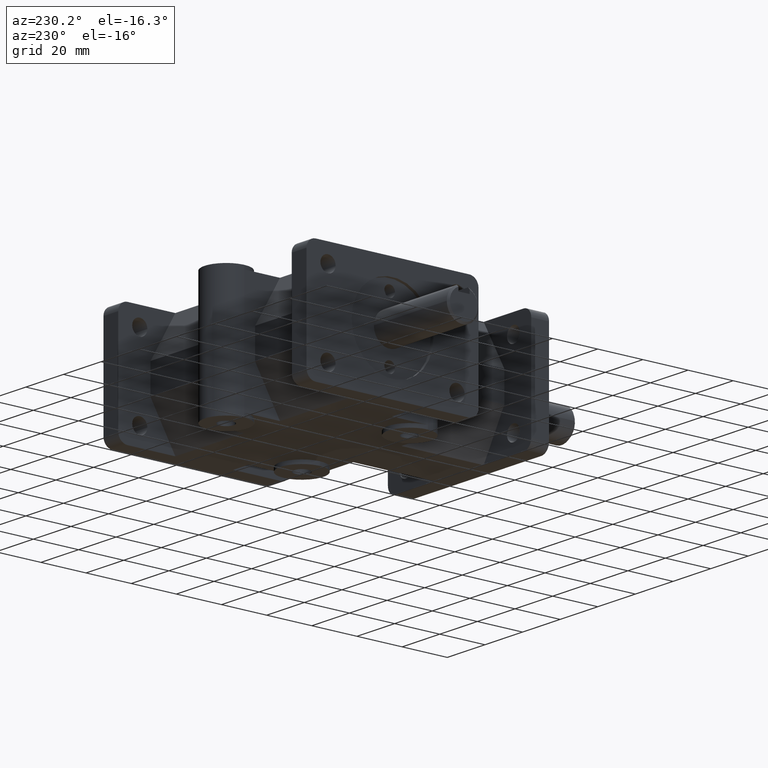
[diagram: clean part render]
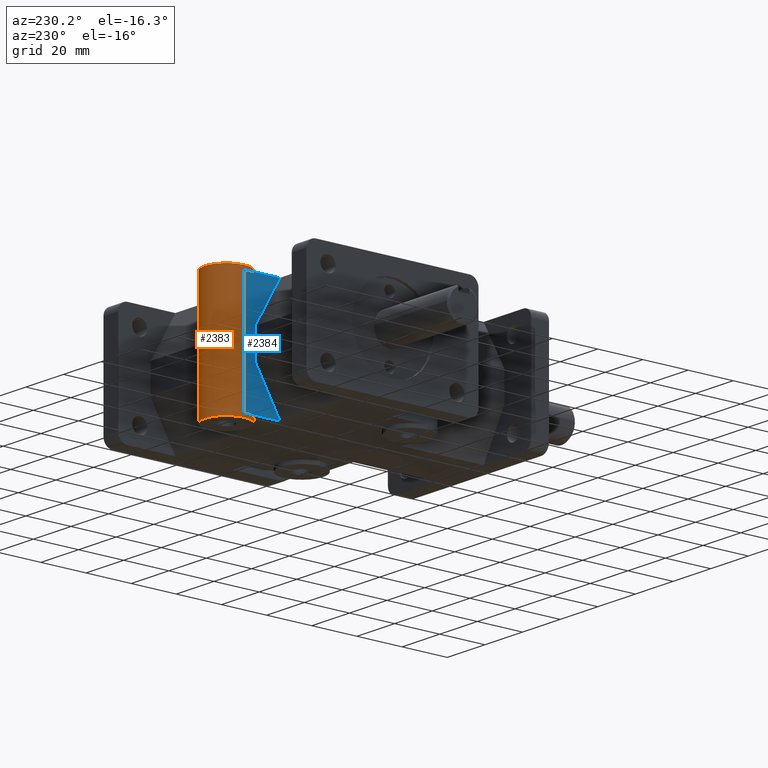
[diagram: same view with the hole feature highlighted: cylindrical wall and planar end face, labeled with their STEP entity ids]
A machine part, auxiliary view. The highlighted faces form one hole feature of diameter 19.05 mm: the cylindrical wall (entity #2383, orange) and its adjacent planar end face (entity #2384, blue) — they share a circular edge in the B-rep.
Wall:
#264=FACE_OUTER_BOUND('',#428,.T.);
#428=EDGE_LOOP('',(#2126,#2127,#2128,#2129,#2130,#2131,#2132,#2133,#2134,
#2135));
#657=LINE('',#4006,#879);
#658=LINE('',#4008,#880);
#659=LINE('',#4009,#881);
#660=LINE('',#4010,#882);
#879=VECTOR('',#3294,1.);
#880=VECTOR('',#3297,9.525);
#881=VECTOR('',#3298,1.);
#882=VECTOR('',#3299,9.525);
#964=CIRCLE('',#2536,9.525);
#971=CIRCLE('',#2545,9.525);
#1000=CIRCLE('',#2620,9.525);
#1001=CIRCLE('',#2622,9.525);
#1137=VERTEX_POINT('',#3718);
#1138=VERTEX_POINT('',#3720);
#1157=VERTEX_POINT('',#3767);
#1158=VERTEX_POINT('',#3769);
#1221=VERTEX_POINT('',#3987);
#1222=VERTEX_POINT('',#3990);
#1397=EDGE_CURVE('',#1137,#1138,#964,.T.);
#1424=EDGE_CURVE('',#1157,#1158,#971,.T.);
#1533=EDGE_CURVE('',#1221,#1221,#1000,.T.);
#1534=EDGE_CURVE('',#1222,#1222,#1001,.T.);
#1540=EDGE_CURVE('',#1137,#1158,#657,.T.);
#1541=EDGE_CURVE('',#1222,#1157,#658,.T.);
#1542=EDGE_CURVE('',#1138,#1157,#659,.T.);
#1543=EDGE_CURVE('',#1138,#1221,#660,.T.);
#2126=ORIENTED_EDGE('',*,*,#1534,.T.);
#2127=ORIENTED_EDGE('',*,*,#1541,.T.);
#2128=ORIENTED_EDGE('',*,*,#1542,.F.);
#2129=ORIENTED_EDGE('',*,*,#1543,.T.);
#2130=ORIENTED_EDGE('',*,*,#1533,.T.);
#2131=ORIENTED_EDGE('',*,*,#1543,.F.);
#2132=ORIENTED_EDGE('',*,*,#1397,.F.);
#2133=ORIENTED_EDGE('',*,*,#1540,.T.);
#2134=ORIENTED_EDGE('',*,*,#1424,.F.);
#2135=ORIENTED_EDGE('',*,*,#1541,.F.);
#2267=CYLINDRICAL_SURFACE('',#2632,9.525);
#2383=ADVANCED_FACE('',(#264),#2267,.T.);
#2536=AXIS2_PLACEMENT_3D('',#3721,#2997,#2998);
#2545=AXIS2_PLACEMENT_3D('',#3770,#3035,#3036);
#2620=AXIS2_PLACEMENT_3D('',#3988,#3265,#3266);
#2622=AXIS2_PLACEMENT_3D('',#3991,#3269,#3270);
#2632=AXIS2_PLACEMENT_3D('',#4007,#3295,#3296);
#2997=DIRECTION('center_axis',(0.,0.,-1.));
#2998=DIRECTION('ref_axis',(1.,0.,0.));
#3035=DIRECTION('center_axis',(0.,0.,1.));
#3036=DIRECTION('ref_axis',(1.,0.,0.));
#3265=DIRECTION('center_axis',(0.,0.,-1.));
#3266=DIRECTION('ref_axis',(1.,0.,0.));
#3269=DIRECTION('center_axis',(0.,0.,1.));
#3270=DIRECTION('ref_axis',(1.,0.,0.));
#3294=DIRECTION('',(0.,0.,-1.));
#3295=DIRECTION('center_axis',(0.,0.,-1.));
#3296=DIRECTION('ref_axis',(1.,0.,0.));
#3297=DIRECTION('',(0.,0.,1.));
#3298=DIRECTION('',(0.,0.,-1.));
#3299=DIRECTION('',(0.,0.,1.));
#3718=CARTESIAN_POINT('',(9.525,111.252,25.4));
#3720=CARTESIAN_POINT('',(-9.525,111.252,25.4));
#3721=CARTESIAN_POINT('Origin',(0.,111.252,25.4));
#3767=CARTESIAN_POINT('',(-9.525,111.252,-25.4));
#3769=CARTESIAN_POINT('',(9.525,111.252,-25.4));
#3770=CARTESIAN_POINT('Origin',(0.,111.252,-25.4));
#3987=CARTESIAN_POINT('',(-9.525,111.252,27.051));
#3988=CARTESIAN_POINT('Origin',(0.,111.252,27.051));
#3990=CARTESIAN_POINT('',(-9.525,111.252,-27.051));
#3991=CARTESIAN_POINT('Origin',(0.,111.252,-27.051));
#4006=CARTESIAN_POINT('',(9.525,111.252,0.));
#4007=CARTESIAN_POINT('Origin',(0.,111.252,0.));
#4008=CARTESIAN_POINT('',(-9.525,111.252,0.));
#4009=CARTESIAN_POINT('',(-9.525,111.252,0.));
#4010=CARTESIAN_POINT('',(-9.525,111.252,0.));
End face:
#137=PLANE('',#2633);
#265=FACE_OUTER_BOUND('',#429,.T.);
#429=EDGE_LOOP('',(#2136,#2137,#2138,#2139,#2140,#2141));
#552=LINE('',#3723,#774);
#571=LINE('',#3768,#793);
#626=LINE('',#3913,#848);
#630=LINE('',#3921,#852);
#659=LINE('',#4009,#881);
#661=LINE('',#4012,#883);
#774=VECTOR('',#2999,1.);
#793=VECTOR('',#3034,1.);
#848=VECTOR('',#3183,1.);
#852=VECTOR('',#3189,1.);
#881=VECTOR('',#3298,1.);
#883=VECTOR('',#3302,1.);
#1138=VERTEX_POINT('',#3720);
#1139=VERTEX_POINT('',#3722);
#1156=VERTEX_POINT('',#3765);
#1157=VERTEX_POINT('',#3767);
#1200=VERTEX_POINT('',#3912);
#1203=VERTEX_POINT('',#3920);
#1398=EDGE_CURVE('',#1139,#1138,#552,.T.);
#1423=EDGE_CURVE('',#1157,#1156,#571,.T.);
#1496=EDGE_CURVE('',#1200,#1156,#626,.F.);
#1500=EDGE_CURVE('',#1139,#1203,#630,.F.);
#1542=EDGE_CURVE('',#1138,#1157,#659,.T.);
#1544=EDGE_CURVE('',#1203,#1200,#661,.T.);
#2136=ORIENTED_EDGE('',*,*,#1423,.T.);
#2137=ORIENTED_EDGE('',*,*,#1496,.F.);
#2138=ORIENTED_EDGE('',*,*,#1544,.F.);
#2139=ORIENTED_EDGE('',*,*,#1500,.F.);
#2140=ORIENTED_EDGE('',*,*,#1398,.T.);
#2141=ORIENTED_EDGE('',*,*,#1542,.T.);
#2384=ADVANCED_FACE('',(#265),#137,.T.);
#2633=AXIS2_PLACEMENT_3D('',#4011,#3300,#3301);
#2999=DIRECTION('',(0.,1.,0.));
#3034=DIRECTION('',(0.,-1.,0.));
#3183=DIRECTION('',(0.,0.500000258168844,0.866025254730536));
#3189=DIRECTION('',(0.,-0.500000258168844,0.866025254730536));
#3298=DIRECTION('',(0.,0.,-1.));
#3300=DIRECTION('center_axis',(-1.,0.,0.));
#3301=DIRECTION('ref_axis',(0.,1.,0.));
#3302=DIRECTION('',(0.,0.,-1.));
#3720=CARTESIAN_POINT('',(-9.525,111.252,25.4));
#3722=CARTESIAN_POINT('',(-9.525,95.3639698,25.4));
#3723=CARTESIAN_POINT('',(-9.525,106.3625,25.4));
#3765=CARTESIAN_POINT('',(-9.525,95.3639698,-25.4));
#3767=CARTESIAN_POINT('',(-9.525,111.252,-25.4));
#3768=CARTESIAN_POINT('',(-9.525,86.4543328121895,-25.4));
#3912=CARTESIAN_POINT('',(-9.525,106.3625,-6.35));
#3913=CARTESIAN_POINT('',(-9.525,105.598871382912,-7.67264265233604));
#3920=CARTESIAN_POINT('',(-9.525,106.3625,6.35));
#3921=CARTESIAN_POINT('',(-9.525,105.598871382912,7.67264265233604));
#4009=CARTESIAN_POINT('',(-9.525,111.252,0.));
#4011=CARTESIAN_POINT('Origin',(-9.525,111.252,0.));
#4012=CARTESIAN_POINT('',(-9.525,106.3625,0.));